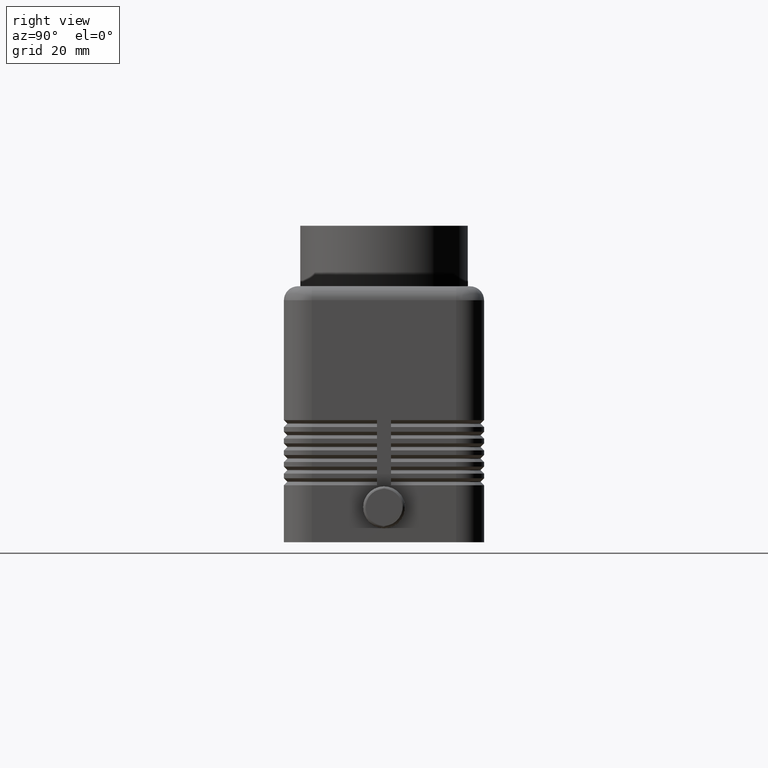
[diagram: clean part render]
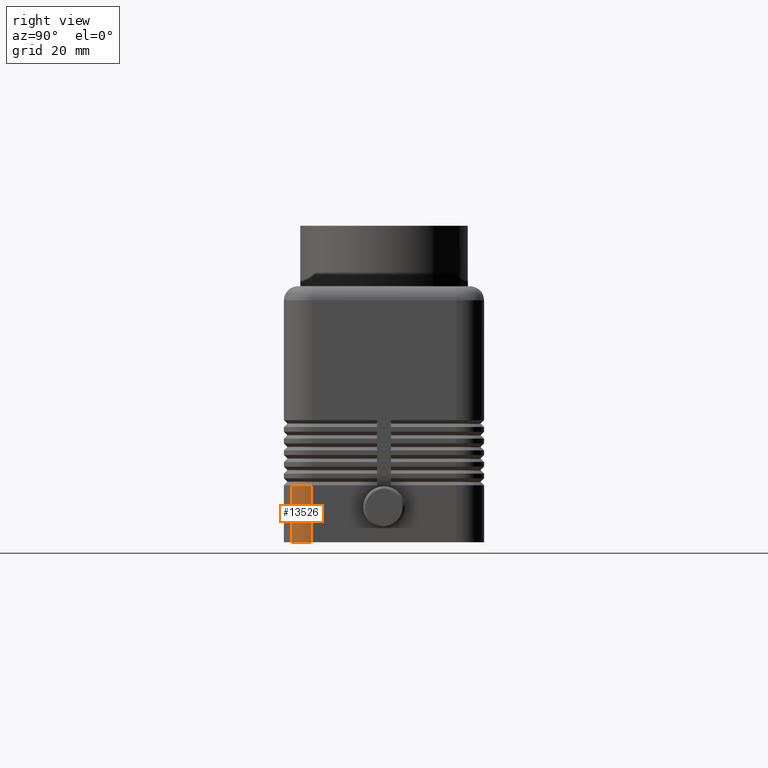
[diagram: same view with one face highlighted and labeled with its STEP entity id]
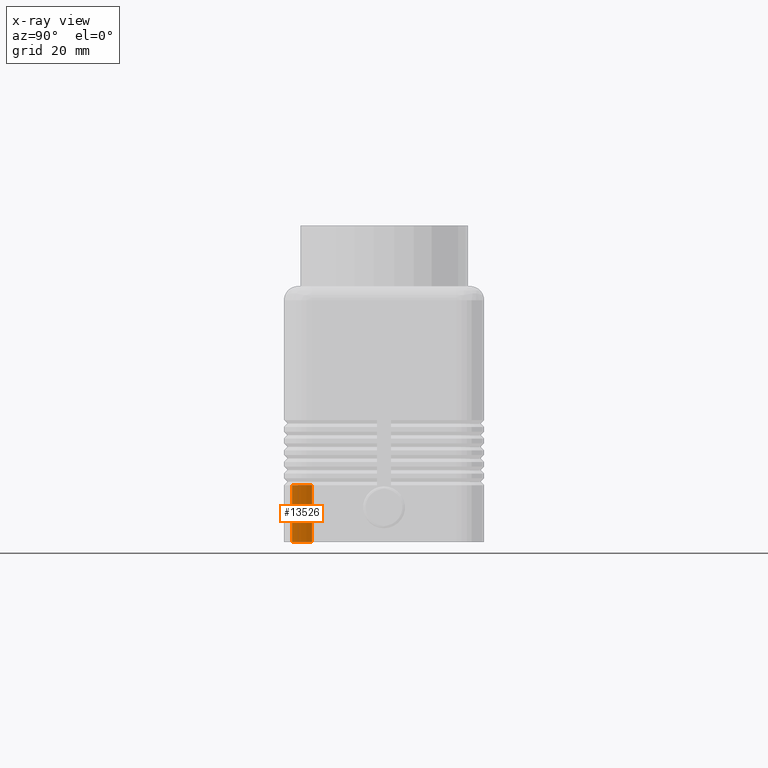
[diagram: x-ray of the same camera — body ghosted, the highlighted face saturated]
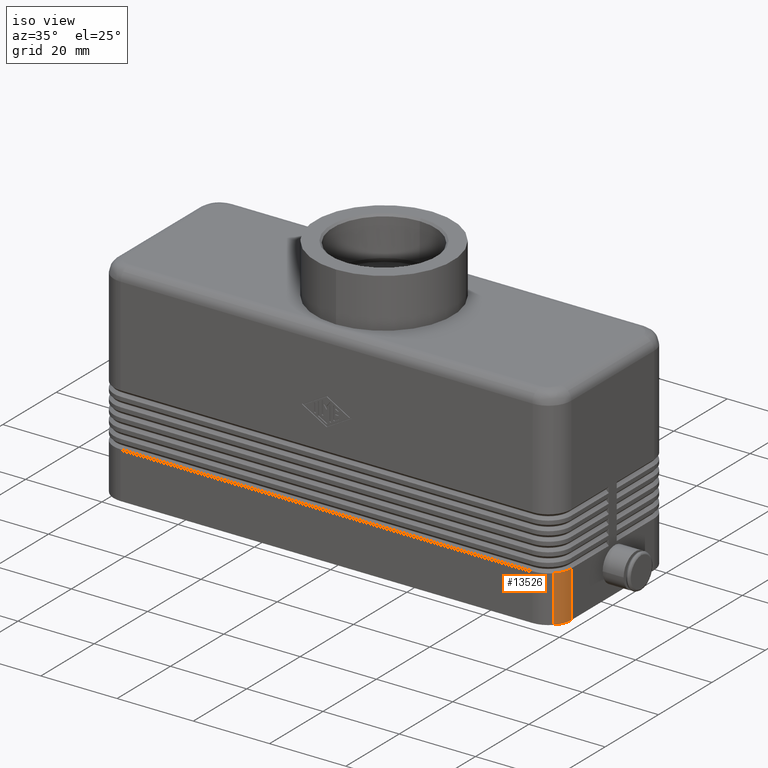
[diagram: same view with one face highlighted and labeled with its STEP entity id]
A machine part, right view. The second image highlights one B-rep face of the part: STEP entity #13526.
The next image is the same camera in x-ray: the body ghosted, the highlighted face saturated — about 0% of this face is hidden behind the body in this view.
A second angle (iso view) of the same face is appended — the face is thin or edge-on in the first view.
In plain terms, the highlighted cylindrical surface (edge-blend (fillet) strip) has radius 6 mm, axis along (0, 0, -1).
Its self-contained STEP definition (entity closure, byte-faithful):
#580=CARTESIAN_POINT('',(58.242640687119284,-19.742640687119287,12.250000000000021));
#581=VERTEX_POINT('',#580);
#582=CARTESIAN_POINT('',(58.242640687119284,-19.742640687119284,1.776357E-014));
#583=VERTEX_POINT('',#582);
#584=CARTESIAN_POINT('',(58.242640687119284,-19.742640687119287,12.250000000000021));
#585=DIRECTION('',(0.0,0.0,-1.0));
#586=VECTOR('',#585,12.250000000000004);
#587=LINE('',#584,#586);
#588=EDGE_CURVE('',#581,#583,#587,.T.);
#6391=CARTESIAN_POINT('',(60.0,-15.499999999999998,12.250000000000021));
#6392=VERTEX_POINT('',#6391);
#6399=CARTESIAN_POINT('',(60.0,-15.499999999999998,0.0));
#6400=VERTEX_POINT('',#6399);
#6401=CARTESIAN_POINT('',(60.0,-15.499999999999998,0.0));
#6402=DIRECTION('',(0.0,0.0,1.0));
#6403=VECTOR('',#6402,12.250000000000021);
#6404=LINE('',#6401,#6403);
#6405=EDGE_CURVE('',#6400,#6392,#6404,.T.);
#13460=CARTESIAN_POINT('',(54.0,-15.499999999999998,12.250000000000021));
#13461=DIRECTION('',(0.0,0.0,1.0));
#13462=DIRECTION('',(0.707106781186547,-0.707106781186548,0.0));
#13463=AXIS2_PLACEMENT_3D('',#13460,#13461,#13462);
#13464=CIRCLE('',#13463,6.000000000000001);
#13465=EDGE_CURVE('',#581,#6392,#13464,.T.);
#13509=CARTESIAN_POINT('',(54.0,-15.499999999999998,13.750000000000000));
#13510=DIRECTION('',(1.614870E-016,0.0,-1.0));
#13511=DIRECTION('',(0.707106781186547,-0.707106781186548,0.0));
#13512=AXIS2_PLACEMENT_3D('',#13509,#13510,#13511);
#13513=CYLINDRICAL_SURFACE('',#13512,6.0);
#13514=ORIENTED_EDGE('',*,*,#588,.T.);
#13515=CARTESIAN_POINT('',(54.0,-15.499999999999998,1.776357E-014));
#13516=DIRECTION('',(0.0,0.0,1.0));
#13517=DIRECTION('',(0.707106781186547,-0.707106781186548,0.0));
#13518=AXIS2_PLACEMENT_3D('',#13515,#13516,#13517);
#13519=CIRCLE('',#13518,6.0);
#13520=EDGE_CURVE('',#583,#6400,#13519,.T.);
#13521=ORIENTED_EDGE('',*,*,#13520,.T.);
#13522=ORIENTED_EDGE('',*,*,#6405,.T.);
#13523=ORIENTED_EDGE('',*,*,#13465,.F.);
#13524=EDGE_LOOP('',(#13514,#13521,#13522,#13523));
#13525=FACE_OUTER_BOUND('',#13524,.T.);
#13526=ADVANCED_FACE('',(#13525),#13513,.T.);